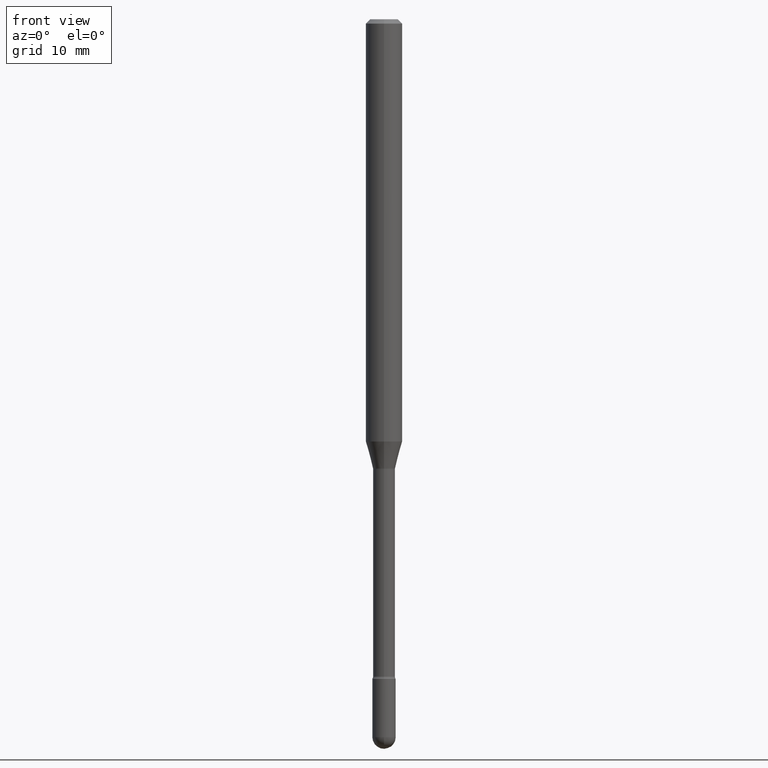
[diagram: clean part render]
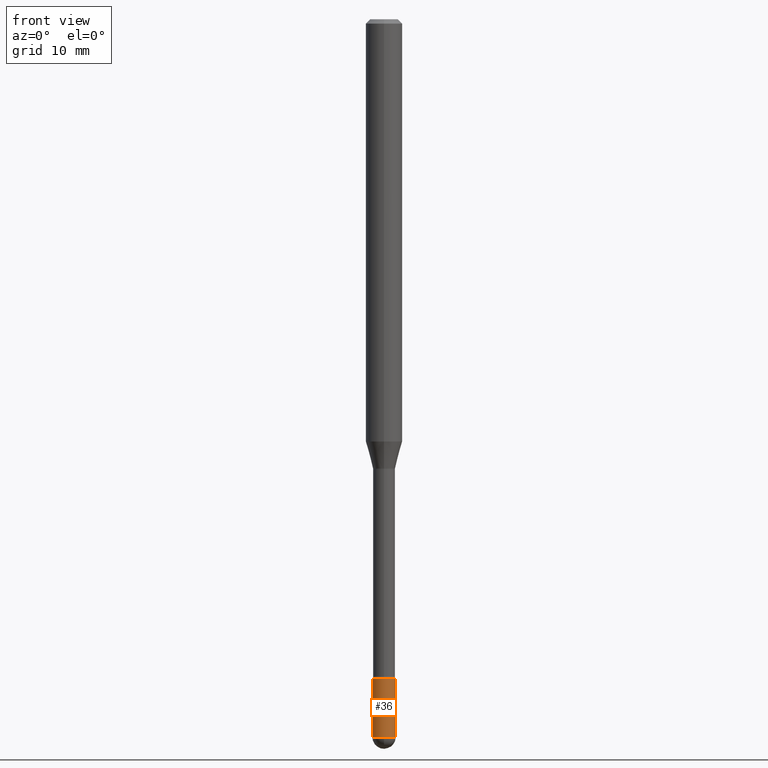
[diagram: same view with one face highlighted and labeled with its STEP entity id]
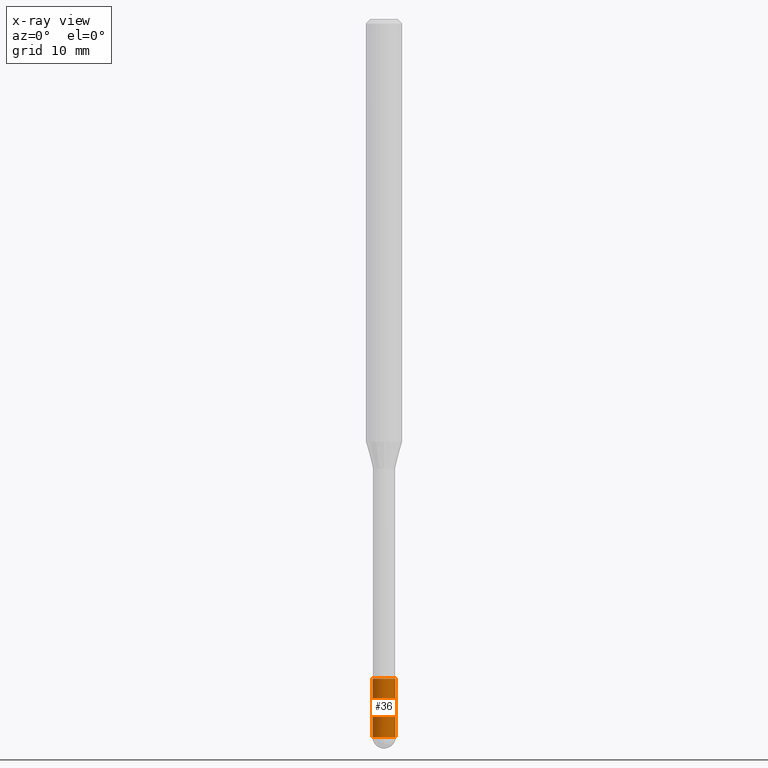
[diagram: x-ray of the same camera — body ghosted, the highlighted face saturated]
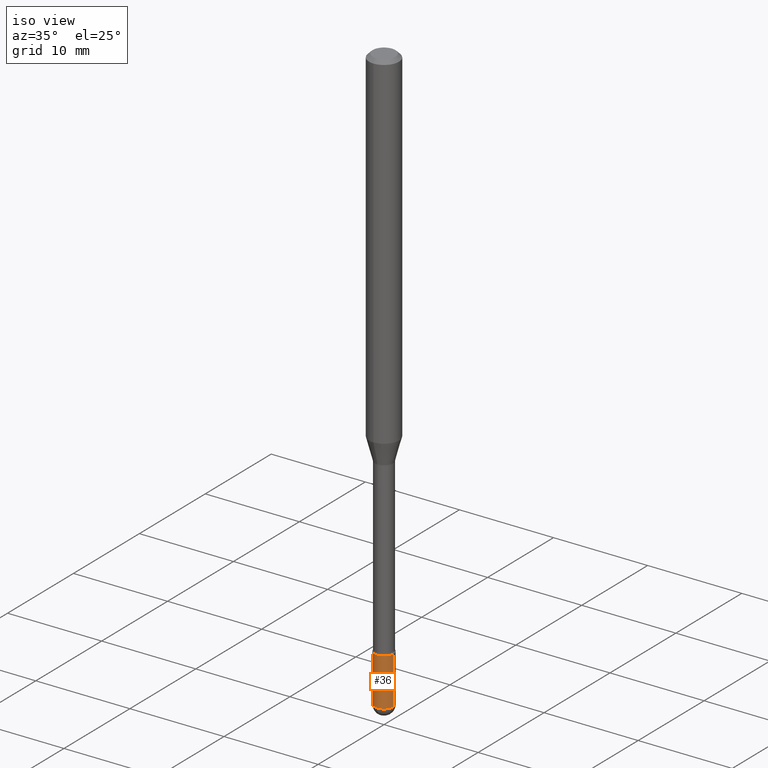
[diagram: same view with one face highlighted and labeled with its STEP entity id]
A machine part, front view. The second image highlights one B-rep face of the part: STEP entity #36.
The next image is the same camera in x-ray: the body ghosted, the highlighted face saturated — about 0% of this face is hidden behind the body in this view.
A second angle (iso view) of the same face is appended — the face is thin or edge-on in the first view.
In plain terms, the highlighted cylindrical surface (edge-blend (fillet) strip) has radius 1.016 mm, axis along (-0, 0, 1).
Its self-contained STEP definition (entity closure, byte-faithful):
#2 = DIRECTION ( 'NONE',  ( -2.445468806185136597E-29, 3.491481338843145583E-15, 1.000000000000000000 ) ) ;
#6 = CARTESIAN_POINT ( 'NONE',  ( 0.000000000000000000, 0.000000000000000000, 0.000000000000000000 ) ) ;
#14 = CARTESIAN_POINT ( 'NONE',  ( 0.03999999999999999389, -8.519214466777273470E-15, -2.459999999999999964 ) ) ;
#15 = CARTESIAN_POINT ( 'NONE',  ( -2.842170943039800282E-16, -0.04000000000000860506, -2.459999999999999520 ) ) ;
#21 = AXIS2_PLACEMENT_3D ( 'NONE', #535, #2, #450 ) ;
#27 = ORIENTED_EDGE ( 'NONE', *, *, #353, .F. ) ;
#36 = ADVANCED_FACE ( 'NONE', ( #52 ), #400, .T. ) ;
#52 = FACE_OUTER_BOUND ( 'NONE', #340, .T. ) ;
#62 = CARTESIAN_POINT ( 'NONE',  ( 0.04000000000000000083, -8.170066332892960135E-15, -2.260000000000000231 ) ) ;
#79 = AXIS2_PLACEMENT_3D ( 'NONE', #112, #377, #163 ) ;
#80 = ORIENTED_EDGE ( 'NONE', *, *, #546, .T. ) ;
#83 = VERTEX_POINT ( 'NONE', #62 ) ;
#94 = EDGE_CURVE ( 'NONE', #300, #83, #539, .T. ) ;
#112 = CARTESIAN_POINT ( 'NONE',  ( 6.015853263215436432E-29, -8.589044093554138346E-15, -2.459999999999999964 ) ) ;
#115 = DIRECTION ( 'NONE',  ( -2.445468806185136877E-29, 3.491481338843145188E-15, 1.000000000000000000 ) ) ;
#121 = VERTEX_POINT ( 'NONE', #15 ) ;
#139 = ORIENTED_EDGE ( 'NONE', *, *, #449, .T. ) ;
#146 = ORIENTED_EDGE ( 'NONE', *, *, #94, .T. ) ;
#163 = DIRECTION ( 'NONE',  ( 1.000000000000000000, -6.982962677686260400E-15, 0.000000000000000000 ) ) ;
#174 = CIRCLE ( 'NONE', #79, 0.03999999999999999389 ) ;
#183 = DIRECTION ( 'NONE',  ( -2.445468806185136597E-29, 3.491481338843145583E-15, 1.000000000000000000 ) ) ;
#186 = VERTEX_POINT ( 'NONE', #391 ) ;
#217 = EDGE_CURVE ( 'NONE', #490, #186, #342, .T. ) ;
#264 = ORIENTED_EDGE ( 'NONE', *, *, #217, .F. ) ;
#272 = AXIS2_PLACEMENT_3D ( 'NONE', #352, #410, #447 ) ;
#290 = AXIS2_PLACEMENT_3D ( 'NONE', #6, #183, #445 ) ;
#300 = VERTEX_POINT ( 'NONE', #14 ) ;
#311 = CIRCLE ( 'NONE', #21, 0.04000000000000000083 ) ;
#340 = EDGE_LOOP ( 'NONE', ( #264, #139, #80, #146, #27 ) ) ;
#342 = LINE ( 'NONE', #433, #528 ) ;
#352 = CARTESIAN_POINT ( 'NONE',  ( 6.015853263215436432E-29, -8.589044093554138346E-15, -2.459999999999999964 ) ) ;
#353 = EDGE_CURVE ( 'NONE', #186, #83, #311, .T. ) ;
#361 = CARTESIAN_POINT ( 'NONE',  ( -0.03999999999999999389, -7.955678865365783106E-15, -2.459999999999999964 ) ) ;
#377 = DIRECTION ( 'NONE',  ( -2.445468806185136597E-29, 3.491481338843145583E-15, 1.000000000000000000 ) ) ;
#381 = CIRCLE ( 'NONE', #272, 0.03999999999999999389 ) ;
#391 = CARTESIAN_POINT ( 'NONE',  ( -0.04000000000000000083, -7.955678865365783106E-15, -2.260000000000000231 ) ) ;
#400 = CYLINDRICAL_SURFACE ( 'NONE', #290, 0.04000000000000000083 ) ;
#410 = DIRECTION ( 'NONE',  ( -2.445468806185136597E-29, 3.491481338843145583E-15, 1.000000000000000000 ) ) ;
#433 = CARTESIAN_POINT ( 'NONE',  ( -0.04000000000000000083, 2.842170943040400803E-16, -1.967574036101962509E-30 ) ) ;
#445 = DIRECTION ( 'NONE',  ( 1.000000000000000000, -6.982962677686265922E-15, 4.876176775795935793E-29 ) ) ;
#447 = DIRECTION ( 'NONE',  ( 1.000000000000000000, -6.982962677686260400E-15, 0.000000000000000000 ) ) ;
#449 = EDGE_CURVE ( 'NONE', #490, #121, #381, .T. ) ;
#450 = DIRECTION ( 'NONE',  ( 1.000000000000000000, -6.982962677686259611E-15, 0.000000000000000000 ) ) ;
#456 = CARTESIAN_POINT ( 'NONE',  ( 0.04000000000000000083, -2.793185071074506290E-16, 1.950470710318374387E-30 ) ) ;
#490 = VERTEX_POINT ( 'NONE', #361 ) ;
#494 = DIRECTION ( 'NONE',  ( -2.445468806185136877E-29, 3.491481338843145188E-15, 1.000000000000000000 ) ) ;
#518 = VECTOR ( 'NONE', #494, 39.37007874015748143 ) ;
#528 = VECTOR ( 'NONE', #115, 39.37007874015748143 ) ;
#535 = CARTESIAN_POINT ( 'NONE',  ( 5.526759501978408888E-29, -7.890747825785510097E-15, -2.260000000000000231 ) ) ;
#539 = LINE ( 'NONE', #456, #518 ) ;
#546 = EDGE_CURVE ( 'NONE', #121, #300, #174, .T. ) ;